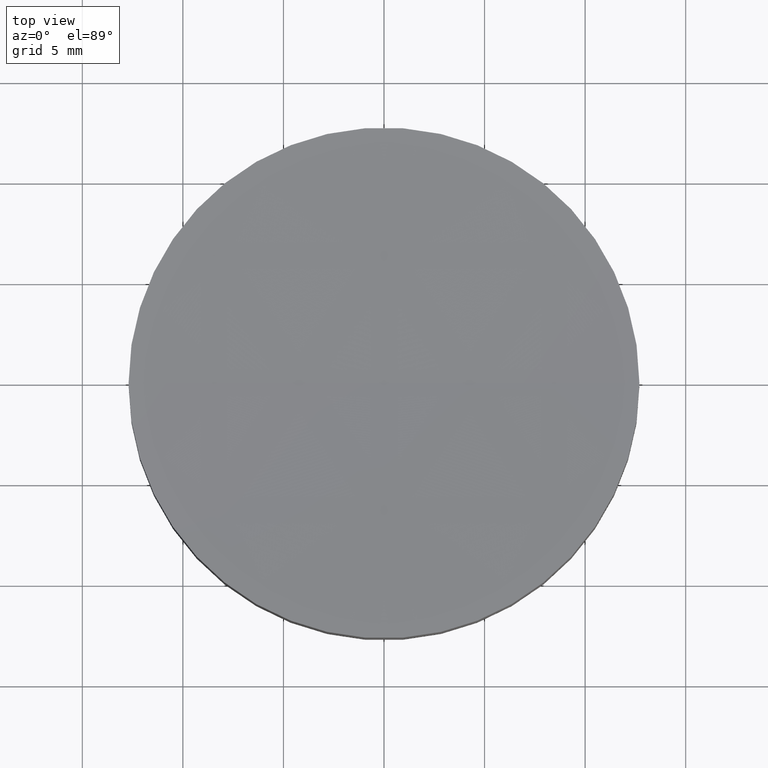
[diagram: clean part render]
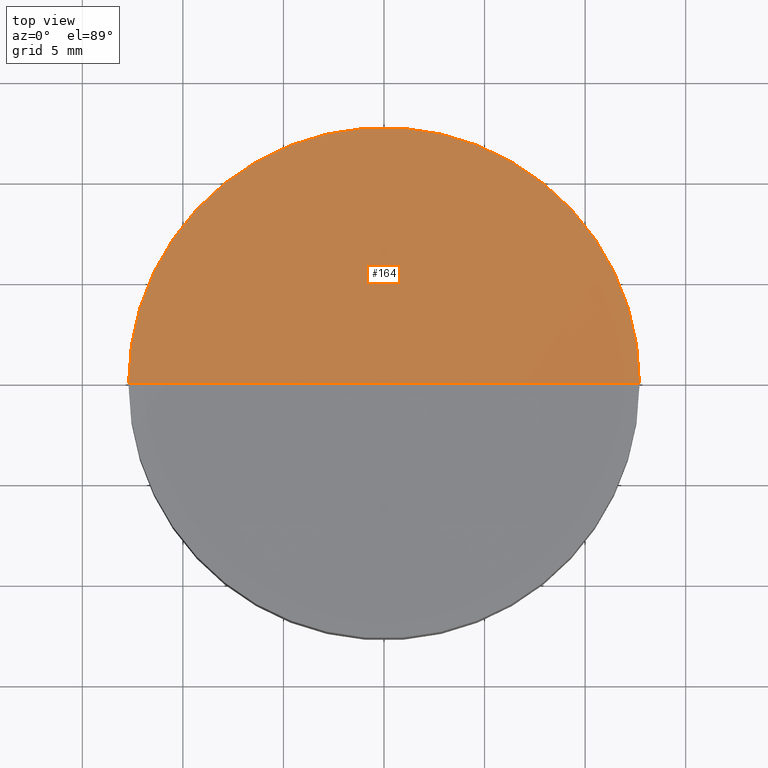
[diagram: same view with one face highlighted and labeled with its STEP entity id]
A machine part, top view. The second image highlights one B-rep face of the part: STEP entity #164.
In plain terms, the highlighted spherical surface has radius 350 mm.
Its self-contained STEP definition (entity closure, byte-faithful):
#19 = CIRCLE ( 'NONE', #74, 12.69999999999978257 ) ;
#20 = ORIENTED_EDGE ( 'NONE', *, *, #52, .F. ) ;
#25 = DIRECTION ( 'NONE',  ( 0.000000000000000000, 1.000000000000000000, -0.000000000000000000 ) ) ;
#32 = EDGE_LOOP ( 'NONE', ( #95, #173, #20 ) ) ;
#38 = DIRECTION ( 'NONE',  ( 1.000000000000000000, 0.000000000000000000, 0.000000000000000000 ) ) ;
#49 = AXIS2_PLACEMENT_3D ( 'NONE', #86, #25, #71 ) ;
#52 = EDGE_CURVE ( 'NONE', #97, #143, #189, .T. ) ;
#53 = DIRECTION ( 'NONE',  ( -0.000000000000000000, -0.000000000000000000, -1.000000000000000000 ) ) ;
#69 = FACE_OUTER_BOUND ( 'NONE', #32, .T. ) ;
#71 = DIRECTION ( 'NONE',  ( 0.000000000000000000, 0.000000000000000000, 1.000000000000000000 ) ) ;
#74 = AXIS2_PLACEMENT_3D ( 'NONE', #115, #53, #38 ) ;
#78 = EDGE_CURVE ( 'NONE', #158, #143, #167, .T. ) ;
#86 = CARTESIAN_POINT ( 'NONE',  ( 4.510281037539698445E-14, 0.000000000000000000, 355.7695098203958537 ) ) ;
#95 = ORIENTED_EDGE ( 'NONE', *, *, #151, .F. ) ;
#97 = VERTEX_POINT ( 'NONE', #98 ) ;
#98 = CARTESIAN_POINT ( 'NONE',  ( 12.69999999999982698, 1.555301434917128177E-15, 6.000000000000005329 ) ) ;
#102 = AXIS2_PLACEMENT_3D ( 'NONE', #177, #112, #114 ) ;
#112 = DIRECTION ( 'NONE',  ( 1.224646799147353207E-16, -1.000000000000000000, 0.000000000000000000 ) ) ;
#114 = DIRECTION ( 'NONE',  ( 1.000000000000000000, 1.224646799147353207E-16, 0.000000000000000000 ) ) ;
#115 = CARTESIAN_POINT ( 'NONE',  ( 4.510281037539698445E-14, 0.000000000000000000, 6.000000000000005329 ) ) ;
#132 = CARTESIAN_POINT ( 'NONE',  ( 6.653412936047567325E-14, 0.000000000000000000, 5.769509820395867905 ) ) ;
#143 = VERTEX_POINT ( 'NONE', #132 ) ;
#149 = DIRECTION ( 'NONE',  ( 0.000000000000000000, -1.000000000000000000, -0.000000000000000000 ) ) ;
#151 = EDGE_CURVE ( 'NONE', #158, #97, #19, .T. ) ;
#158 = VERTEX_POINT ( 'NONE', #175 ) ;
#160 = SPHERICAL_SURFACE ( 'NONE', #178, 350.0000000000000000 ) ;
#162 = CARTESIAN_POINT ( 'NONE',  ( 4.510281037539698445E-14, 0.000000000000000000, 355.7695098203958537 ) ) ;
#164 = ADVANCED_FACE ( 'NONE', ( #69 ), #160, .F. ) ;
#167 = CIRCLE ( 'NONE', #102, 350.0000000000000000 ) ;
#173 = ORIENTED_EDGE ( 'NONE', *, *, #78, .T. ) ;
#175 = CARTESIAN_POINT ( 'NONE',  ( -12.69999999999973817, 0.000000000000000000, 6.000000000000005329 ) ) ;
#177 = CARTESIAN_POINT ( 'NONE',  ( 4.510281037539698445E-14, 0.000000000000000000, 355.7695098203958537 ) ) ;
#178 = AXIS2_PLACEMENT_3D ( 'NONE', #162, #149, #196 ) ;
#189 = CIRCLE ( 'NONE', #49, 349.9999999999999432 ) ;
#196 = DIRECTION ( 'NONE',  ( 1.000000000000000000, 0.000000000000000000, 0.000000000000000000 ) ) ;